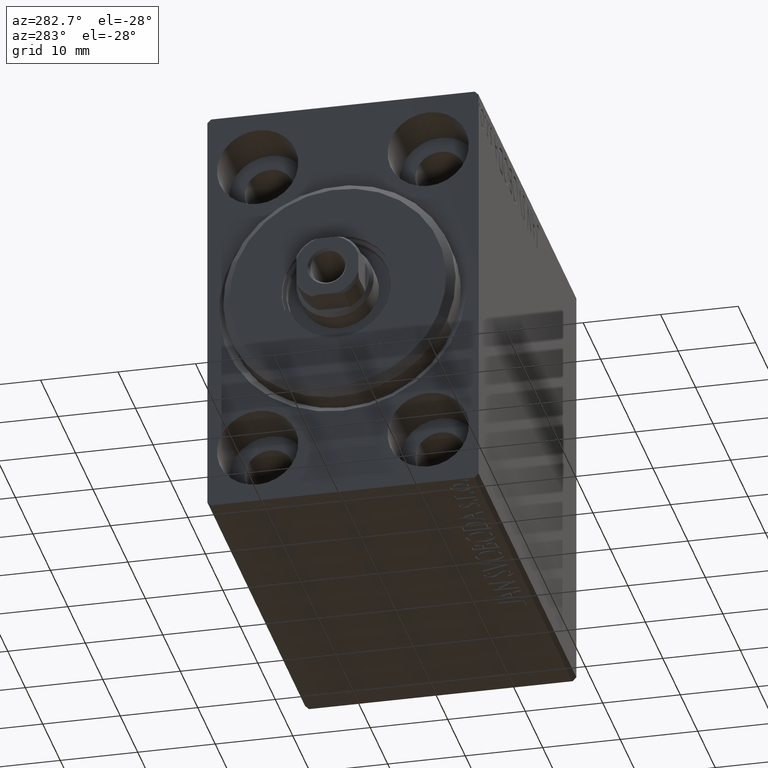
[diagram: clean part render]
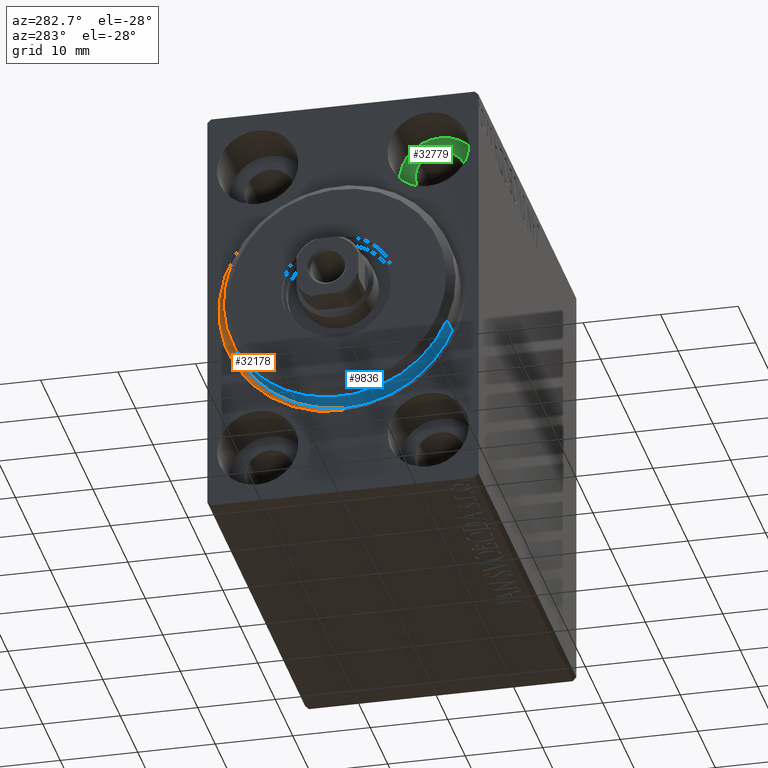
[diagram: same view with three faces highlighted in distinct colors, each labeled with its STEP entity id]
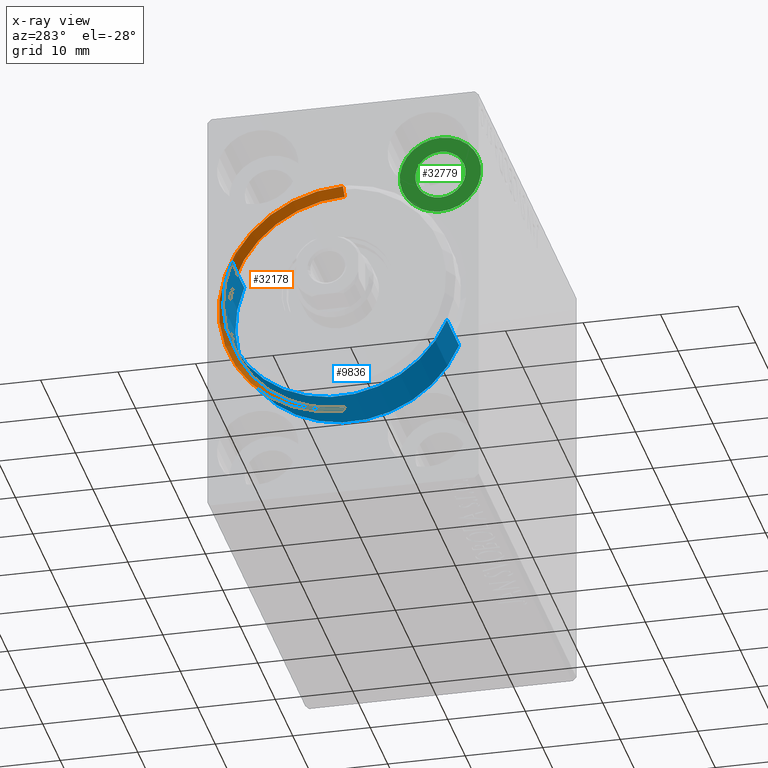
[diagram: x-ray of the same camera — body ghosted, the three highlighted faces saturated]
A machine part, auxiliary view with three faces highlighted in distinct colors.
The next image is the same camera in x-ray (body ghosted, the three faces saturated) — at least one of them is partly hidden behind the body in this view.
Their STEP definitions:

[orange] entity #32178 — the highlighted conical surface has half-angle 45 deg.
#322 = CONICAL_SURFACE ( 'NONE', #7402, 15.00000000000000000, 0.7853981633974491672 ) ;
#503 = AXIS2_PLACEMENT_3D ( 'NONE', #2353, #12315, #19420 ) ;
#2353 = CARTESIAN_POINT ( 'NONE',  ( 1.000000000000013101, 0.000000000000000000, 0.000000000000000000 ) ) ;
#4039 = CIRCLE ( 'NONE', #503, 15.00000000000000000 ) ;
#4310 = EDGE_CURVE ( 'NONE', #32707, #42085, #42337, .T. ) ;
#5260 = DIRECTION ( 'NONE',  ( -0.7071067811865469066, 0.000000000000000000, 0.7071067811865481278 ) ) ;
#6104 = VECTOR ( 'NONE', #43580, 1000.000000000000114 ) ;
#7343 = EDGE_CURVE ( 'NONE', #32707, #16085, #4039, .T. ) ;
#7402 = AXIS2_PLACEMENT_3D ( 'NONE', #41926, #35479, #11505 ) ;
#7746 = FACE_OUTER_BOUND ( 'NONE', #41973, .T. ) ;
#11505 = DIRECTION ( 'NONE',  ( 0.000000000000000000, 0.000000000000000000, 1.000000000000000000 ) ) ;
#11641 = CIRCLE ( 'NONE', #22295, 16.00000000000001421 ) ;
#11917 = CARTESIAN_POINT ( 'NONE',  ( 1.000000000000013101, 0.000000000000000000, 15.00000000000000000 ) ) ;
#12315 = DIRECTION ( 'NONE',  ( -1.000000000000000000, 0.000000000000000000, 0.000000000000000000 ) ) ;
#16085 = VERTEX_POINT ( 'NONE', #36664 ) ;
#16495 = LINE ( 'NONE', #33377, #6104 ) ;
#19208 = DIRECTION ( 'NONE',  ( 1.000000000000000000, 0.000000000000000000, 0.000000000000000000 ) ) ;
#19420 = DIRECTION ( 'NONE',  ( 0.000000000000000000, 0.000000000000000000, -1.000000000000000000 ) ) ;
#21399 = CARTESIAN_POINT ( 'NONE',  ( 1.000000000000013101, 0.000000000000000000, 15.00000000000000000 ) ) ;
#22264 = CARTESIAN_POINT ( 'NONE',  ( 0.000000000000000000, 1.959434878635766709E-15, -16.00000000000001421 ) ) ;
#22295 = AXIS2_PLACEMENT_3D ( 'NONE', #43397, #19208, #32746 ) ;
#24010 = ORIENTED_EDGE ( 'NONE', *, *, #37925, .F. ) ;
#29900 = VERTEX_POINT ( 'NONE', #22264 ) ;
#32178 = ADVANCED_FACE ( 'NONE', ( #7746 ), #322, .F. ) ;
#32566 = EDGE_CURVE ( 'NONE', #29900, #42085, #11641, .T. ) ;
#32707 = VERTEX_POINT ( 'NONE', #21399 ) ;
#32746 = DIRECTION ( 'NONE',  ( 0.000000000000000000, 0.000000000000000000, -1.000000000000000000 ) ) ;
#32959 = ORIENTED_EDGE ( 'NONE', *, *, #32566, .F. ) ;
#33377 = CARTESIAN_POINT ( 'NONE',  ( 1.000000000000013101, 1.836970198721029589E-15, -15.00000000000000000 ) ) ;
#33614 = ORIENTED_EDGE ( 'NONE', *, *, #7343, .F. ) ;
#35479 = DIRECTION ( 'NONE',  ( -1.000000000000000000, 0.000000000000000000, 0.000000000000000000 ) ) ;
#36664 = CARTESIAN_POINT ( 'NONE',  ( 1.000000000000013101, 1.836970198721029589E-15, -15.00000000000000000 ) ) ;
#37925 = EDGE_CURVE ( 'NONE', #16085, #29900, #16495, .T. ) ;
#39819 = CARTESIAN_POINT ( 'NONE',  ( 0.000000000000000000, 0.000000000000000000, 16.00000000000001421 ) ) ;
#41926 = CARTESIAN_POINT ( 'NONE',  ( 1.000000000000013101, 0.000000000000000000, 0.000000000000000000 ) ) ;
#41973 = EDGE_LOOP ( 'NONE', ( #24010, #33614, #41987, #32959 ) ) ;
#41987 = ORIENTED_EDGE ( 'NONE', *, *, #4310, .T. ) ;
#42085 = VERTEX_POINT ( 'NONE', #39819 ) ;
#42318 = VECTOR ( 'NONE', #5260, 1000.000000000000114 ) ;
#42337 = LINE ( 'NONE', #11917, #42318 ) ;
#43397 = CARTESIAN_POINT ( 'NONE',  ( 0.000000000000000000, 0.000000000000000000, 0.000000000000000000 ) ) ;
#43580 = DIRECTION ( 'NONE',  ( -0.7071067811865469066, 8.659560562354940254E-17, -0.7071067811865481278 ) ) ;

[blue] entity #9836 — the highlighted cylindrical surface (partial cylindrical patch) has radius 15 mm, axis along (1, 0, 0).
#368 = DIRECTION ( 'NONE',  ( -1.000000000000000000, -0.000000000000000000, -0.000000000000000000 ) ) ;
#902 = VECTOR ( 'NONE', #368, 1000.000000000000000 ) ;
#2510 = EDGE_LOOP ( 'NONE', ( #13163, #8611, #18765, #22312 ) ) ;
#2839 = VERTEX_POINT ( 'NONE', #13854 ) ;
#2972 = CARTESIAN_POINT ( 'NONE',  ( -5.000000000000000000, 0.000000000000000000, 0.000000000000000000 ) ) ;
#3829 = DIRECTION ( 'NONE',  ( 0.000000000000000000, 0.000000000000000000, -1.000000000000000000 ) ) ;
#4128 = CARTESIAN_POINT ( 'NONE',  ( 3.000000000000000000, 1.836970198721029589E-15, -15.00000000000000000 ) ) ;
#5186 = EDGE_CURVE ( 'NONE', #11929, #31638, #25525, .T. ) ;
#5611 = FACE_OUTER_BOUND ( 'NONE', #2510, .T. ) ;
#7806 = CARTESIAN_POINT ( 'NONE',  ( 1.999999999999995781, 0.000000000000000000, 0.000000000000000000 ) ) ;
#8611 = ORIENTED_EDGE ( 'NONE', *, *, #21789, .T. ) ;
#8704 = DIRECTION ( 'NONE',  ( -1.000000000000000000, -0.000000000000000000, -0.000000000000000000 ) ) ;
#8748 = EDGE_CURVE ( 'NONE', #31638, #2839, #15404, .T. ) ;
#9836 = ADVANCED_FACE ( 'NONE', ( #5611 ), #39560, .T. ) ;
#10331 = LINE ( 'NONE', #4128, #902 ) ;
#11929 = VERTEX_POINT ( 'NONE', #15527 ) ;
#13163 = ORIENTED_EDGE ( 'NONE', *, *, #25058, .T. ) ;
#13854 = CARTESIAN_POINT ( 'NONE',  ( -5.000000000000000000, 1.836970198721029589E-15, -15.00000000000000000 ) ) ;
#14456 = DIRECTION ( 'NONE',  ( -1.000000000000000000, 0.000000000000000000, 0.000000000000000000 ) ) ;
#15404 = CIRCLE ( 'NONE', #23198, 15.00000000000000000 ) ;
#15527 = CARTESIAN_POINT ( 'NONE',  ( 1.999999999999995781, 0.000000000000000000, 15.00000000000000000 ) ) ;
#18765 = ORIENTED_EDGE ( 'NONE', *, *, #8748, .F. ) ;
#19137 = DIRECTION ( 'NONE',  ( 0.000000000000000000, 0.000000000000000000, 1.000000000000000000 ) ) ;
#21789 = EDGE_CURVE ( 'NONE', #35910, #2839, #10331, .T. ) ;
#22192 = CARTESIAN_POINT ( 'NONE',  ( 3.000000000000000000, 0.000000000000000000, 15.00000000000000000 ) ) ;
#22312 = ORIENTED_EDGE ( 'NONE', *, *, #5186, .F. ) ;
#22682 = CARTESIAN_POINT ( 'NONE',  ( 3.000000000000000000, 0.000000000000000000, 0.000000000000000000 ) ) ;
#23198 = AXIS2_PLACEMENT_3D ( 'NONE', #2972, #40909, #27159 ) ;
#25058 = EDGE_CURVE ( 'NONE', #11929, #35910, #34255, .T. ) ;
#25402 = CARTESIAN_POINT ( 'NONE',  ( -5.000000000000000000, 0.000000000000000000, 15.00000000000000000 ) ) ;
#25525 = LINE ( 'NONE', #22192, #38102 ) ;
#27159 = DIRECTION ( 'NONE',  ( 0.000000000000000000, 0.000000000000000000, 1.000000000000000000 ) ) ;
#27882 = AXIS2_PLACEMENT_3D ( 'NONE', #7806, #14456, #3829 ) ;
#31638 = VERTEX_POINT ( 'NONE', #25402 ) ;
#34255 = CIRCLE ( 'NONE', #27882, 15.00000000000000000 ) ;
#34525 = CARTESIAN_POINT ( 'NONE',  ( 1.999999999999995781, 1.836970198721029589E-15, -15.00000000000000000 ) ) ;
#35910 = VERTEX_POINT ( 'NONE', #34525 ) ;
#38102 = VECTOR ( 'NONE', #43057, 1000.000000000000000 ) ;
#39560 = CYLINDRICAL_SURFACE ( 'NONE', #42384, 15.00000000000000000 ) ;
#40909 = DIRECTION ( 'NONE',  ( -1.000000000000000000, 0.000000000000000000, 0.000000000000000000 ) ) ;
#42384 = AXIS2_PLACEMENT_3D ( 'NONE', #22682, #8704, #19137 ) ;
#43057 = DIRECTION ( 'NONE',  ( -1.000000000000000000, -0.000000000000000000, -0.000000000000000000 ) ) ;

[green] entity #32779 — the highlighted planar face has unit normal (-1, 0, 0).
#1094 = EDGE_LOOP ( 'NONE', ( #26437, #5559 ) ) ;
#1215 = PLANE ( 'NONE',  #9510 ) ;
#4969 = FACE_BOUND ( 'NONE', #39455, .T. ) ;
#5559 = ORIENTED_EDGE ( 'NONE', *, *, #39477, .T. ) ;
#5596 = AXIS2_PLACEMENT_3D ( 'NONE', #12079, #36490, #36714 ) ;
#6105 = DIRECTION ( 'NONE',  ( 0.000000000000000000, 0.000000000000000000, 1.000000000000000000 ) ) ;
#9260 = CARTESIAN_POINT ( 'NONE',  ( 6.999999999999999112, -11.00000000000000355, 16.75000000000000000 ) ) ;
#9510 = AXIS2_PLACEMENT_3D ( 'NONE', #41815, #34509, #32046 ) ;
#9647 = CARTESIAN_POINT ( 'NONE',  ( 7.000000000000000000, -11.00000000000000355, 25.25000000000000000 ) ) ;
#9860 = CARTESIAN_POINT ( 'NONE',  ( 7.000000000000000000, -11.00000000000000355, 20.00000000000000000 ) ) ;
#12079 = CARTESIAN_POINT ( 'NONE',  ( 6.999999999999999112, -11.00000000000000355, 20.00000000000000000 ) ) ;
#12297 = EDGE_CURVE ( 'NONE', #43277, #18199, #41744, .T. ) ;
#14499 = EDGE_CURVE ( 'NONE', #18199, #43277, #27588, .T. ) ;
#18199 = VERTEX_POINT ( 'NONE', #30478 ) ;
#26437 = ORIENTED_EDGE ( 'NONE', *, *, #43691, .T. ) ;
#27588 = CIRCLE ( 'NONE', #28996, 3.249999999999999556 ) ;
#28000 = ORIENTED_EDGE ( 'NONE', *, *, #12297, .F. ) ;
#28122 = AXIS2_PLACEMENT_3D ( 'NONE', #39071, #36176, #29733 ) ;
#28275 = FACE_OUTER_BOUND ( 'NONE', #1094, .T. ) ;
#28996 = AXIS2_PLACEMENT_3D ( 'NONE', #40745, #37853, #30757 ) ;
#29733 = DIRECTION ( 'NONE',  ( 0.000000000000000000, 0.000000000000000000, 1.000000000000000000 ) ) ;
#30248 = CIRCLE ( 'NONE', #28122, 5.250000000000000888 ) ;
#30478 = CARTESIAN_POINT ( 'NONE',  ( 6.999999999999999112, -11.00000000000000355, 23.25000000000000000 ) ) ;
#30602 = ORIENTED_EDGE ( 'NONE', *, *, #14499, .F. ) ;
#30757 = DIRECTION ( 'NONE',  ( 0.000000000000000000, 0.000000000000000000, 1.000000000000000000 ) ) ;
#30846 = VERTEX_POINT ( 'NONE', #9647 ) ;
#32046 = DIRECTION ( 'NONE',  ( 0.000000000000000000, 0.000000000000000000, 1.000000000000000000 ) ) ;
#32779 = ADVANCED_FACE ( 'NONE', ( #4969, #28275 ), #1215, .T. ) ;
#34509 = DIRECTION ( 'NONE',  ( -1.000000000000000000, 0.000000000000000000, 0.000000000000000000 ) ) ;
#34538 = CARTESIAN_POINT ( 'NONE',  ( 7.000000000000000000, -11.00000000000000355, 14.75000000000000000 ) ) ;
#36176 = DIRECTION ( 'NONE',  ( -1.000000000000000000, 0.000000000000000000, 0.000000000000000000 ) ) ;
#36490 = DIRECTION ( 'NONE',  ( -1.000000000000000000, 0.000000000000000000, 0.000000000000000000 ) ) ;
#36508 = DIRECTION ( 'NONE',  ( -1.000000000000000000, 0.000000000000000000, 0.000000000000000000 ) ) ;
#36714 = DIRECTION ( 'NONE',  ( 0.000000000000000000, 0.000000000000000000, 1.000000000000000000 ) ) ;
#36785 = VERTEX_POINT ( 'NONE', #34538 ) ;
#37853 = DIRECTION ( 'NONE',  ( -1.000000000000000000, 0.000000000000000000, 0.000000000000000000 ) ) ;
#38144 = CIRCLE ( 'NONE', #41025, 5.250000000000000888 ) ;
#39071 = CARTESIAN_POINT ( 'NONE',  ( 7.000000000000000000, -11.00000000000000355, 20.00000000000000000 ) ) ;
#39455 = EDGE_LOOP ( 'NONE', ( #30602, #28000 ) ) ;
#39477 = EDGE_CURVE ( 'NONE', #36785, #30846, #30248, .T. ) ;
#40745 = CARTESIAN_POINT ( 'NONE',  ( 6.999999999999999112, -11.00000000000000355, 20.00000000000000000 ) ) ;
#41025 = AXIS2_PLACEMENT_3D ( 'NONE', #9860, #36508, #6105 ) ;
#41744 = CIRCLE ( 'NONE', #5596, 3.249999999999999556 ) ;
#41815 = CARTESIAN_POINT ( 'NONE',  ( 7.000000000000000000, 0.000000000000000000, 0.000000000000000000 ) ) ;
#43277 = VERTEX_POINT ( 'NONE', #9260 ) ;
#43691 = EDGE_CURVE ( 'NONE', #30846, #36785, #38144, .T. ) ;